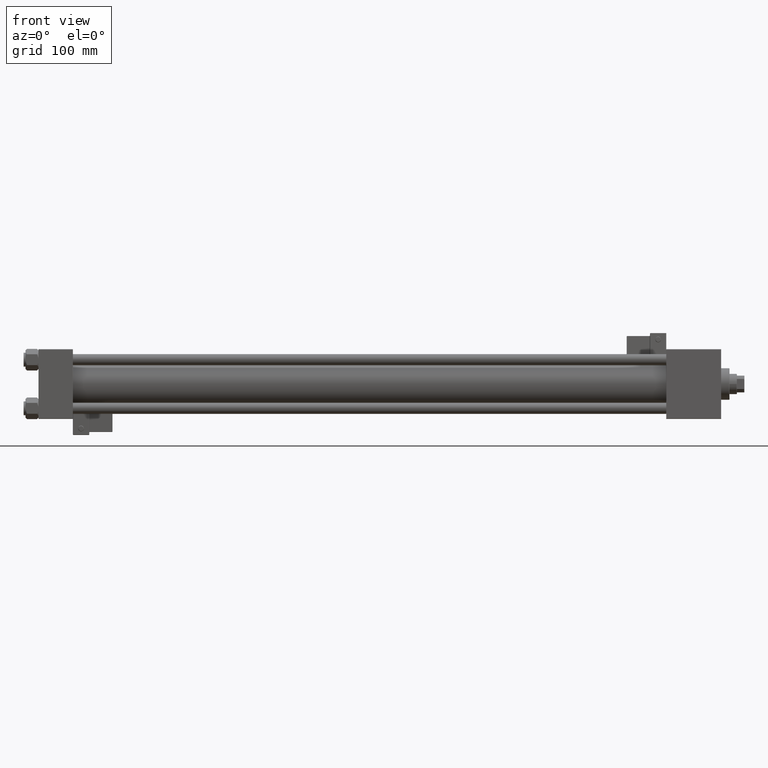
[diagram: clean part render]
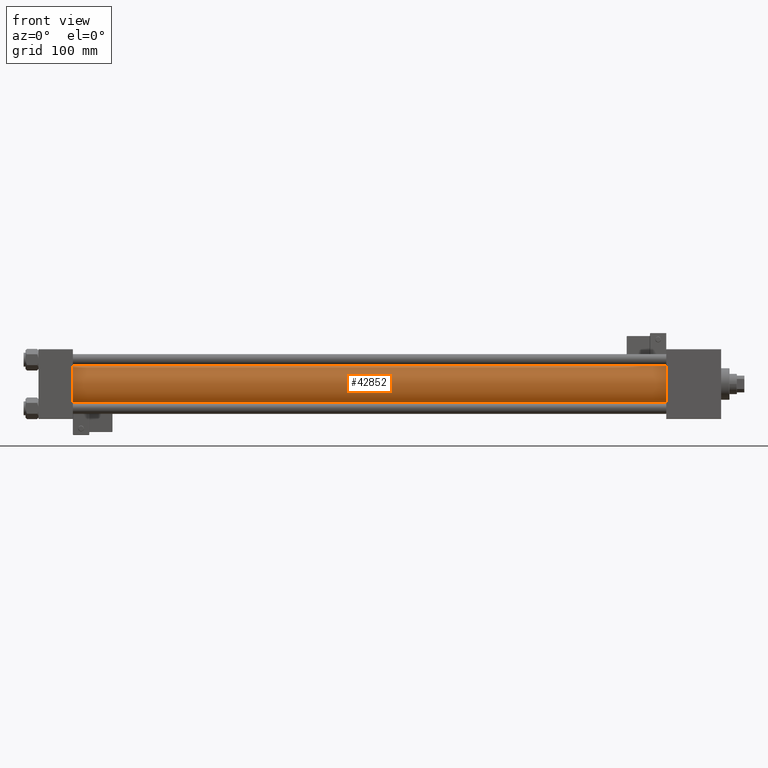
[diagram: same view with one face highlighted and labeled with its STEP entity id]
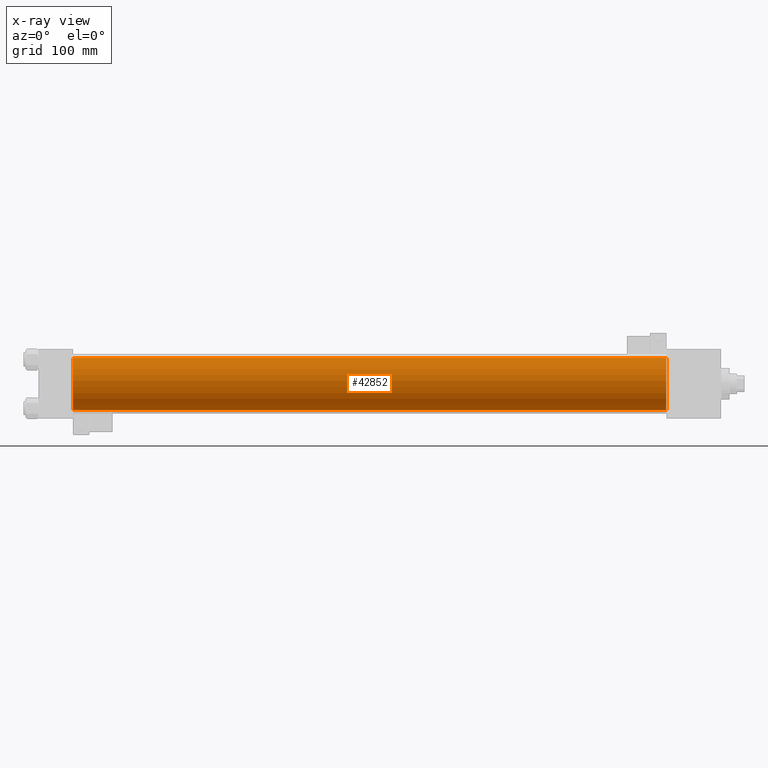
[diagram: x-ray of the same camera — body ghosted, the highlighted face saturated]
A machine part, front view. The second image highlights one B-rep face of the part: STEP entity #42852.
The next image is the same camera in x-ray: the body ghosted, the highlighted face saturated — about 0% of this face is hidden behind the body in this view.
In plain terms, the highlighted cylindrical surface (edge-blend (fillet) strip) has radius 28 mm, axis along (-1, -0, -0).
Its self-contained STEP definition (entity closure, byte-faithful):
#588 = AXIS2_PLACEMENT_3D ( 'NONE', #46192, #11085, #12850 ) ;
#1186 = CARTESIAN_POINT ( 'NONE',  ( 675.0000000000000000, -2.602085213965210642E-15, 0.000000000000000000 ) ) ;
#3538 = CARTESIAN_POINT ( 'NONE',  ( 675.0000000000000000, -2.602085213965210642E-15, 28.00000000000000000 ) ) ;
#3619 = EDGE_LOOP ( 'NONE', ( #22146, #26515, #16419, #24078 ) ) ;
#6437 = CARTESIAN_POINT ( 'NONE',  ( 37.00000000000003553, -2.602085213965210642E-15, 0.000000000000000000 ) ) ;
#8023 = VERTEX_POINT ( 'NONE', #28713 ) ;
#10034 = LINE ( 'NONE', #21213, #13147 ) ;
#10745 = EDGE_CURVE ( 'NONE', #8023, #27839, #10034, .T. ) ;
#11085 = DIRECTION ( 'NONE',  ( 1.000000000000000000, 0.000000000000000000, 0.000000000000000000 ) ) ;
#12611 = FACE_OUTER_BOUND ( 'NONE', #3619, .T. ) ;
#12850 = DIRECTION ( 'NONE',  ( 0.000000000000000000, 0.000000000000000000, -1.000000000000000000 ) ) ;
#13147 = VECTOR ( 'NONE', #33690, 1000.000000000000000 ) ;
#13670 = DIRECTION ( 'NONE',  ( -1.000000000000000000, -0.000000000000000000, -0.000000000000000000 ) ) ;
#16419 = ORIENTED_EDGE ( 'NONE', *, *, #40260, .T. ) ;
#16601 = CYLINDRICAL_SURFACE ( 'NONE', #44093, 28.00000000000000000 ) ;
#21213 = CARTESIAN_POINT ( 'NONE',  ( 675.0000000000000000, 8.269258236473784371E-16, -28.00000000000000000 ) ) ;
#22146 = ORIENTED_EDGE ( 'NONE', *, *, #10745, .F. ) ;
#22645 = DIRECTION ( 'NONE',  ( 1.000000000000000000, -0.000000000000000000, 0.000000000000000000 ) ) ;
#22692 = CARTESIAN_POINT ( 'NONE',  ( 37.00000000000003553, -2.602085213965210642E-15, 28.00000000000000000 ) ) ;
#24078 = ORIENTED_EDGE ( 'NONE', *, *, #38463, .T. ) ;
#26137 = AXIS2_PLACEMENT_3D ( 'NONE', #6437, #22645, #29580 ) ;
#26469 = VERTEX_POINT ( 'NONE', #22692 ) ;
#26515 = ORIENTED_EDGE ( 'NONE', *, *, #33738, .F. ) ;
#27046 = VECTOR ( 'NONE', #44201, 1000.000000000000000 ) ;
#27839 = VERTEX_POINT ( 'NONE', #30748 ) ;
#28713 = CARTESIAN_POINT ( 'NONE',  ( 675.0000000000000000, 8.269258236473784371E-16, -28.00000000000000000 ) ) ;
#28850 = DIRECTION ( 'NONE',  ( 0.000000000000000000, 0.000000000000000000, 1.000000000000000000 ) ) ;
#29580 = DIRECTION ( 'NONE',  ( 0.000000000000000000, 0.000000000000000000, 1.000000000000000000 ) ) ;
#30473 = LINE ( 'NONE', #3538, #27046 ) ;
#30748 = CARTESIAN_POINT ( 'NONE',  ( 37.00000000000003553, 8.269258236473784371E-16, -28.00000000000000000 ) ) ;
#33690 = DIRECTION ( 'NONE',  ( -1.000000000000000000, -0.000000000000000000, -0.000000000000000000 ) ) ;
#33738 = EDGE_CURVE ( 'NONE', #49251, #8023, #48107, .T. ) ;
#34772 = CARTESIAN_POINT ( 'NONE',  ( 675.0000000000000000, -2.602085213965210642E-15, 28.00000000000000000 ) ) ;
#38463 = EDGE_CURVE ( 'NONE', #26469, #27839, #40564, .T. ) ;
#40260 = EDGE_CURVE ( 'NONE', #49251, #26469, #30473, .T. ) ;
#40564 = CIRCLE ( 'NONE', #26137, 28.00000000000000000 ) ;
#42852 = ADVANCED_FACE ( 'NONE', ( #12611 ), #16601, .T. ) ;
#44093 = AXIS2_PLACEMENT_3D ( 'NONE', #1186, #13670, #28850 ) ;
#44201 = DIRECTION ( 'NONE',  ( -1.000000000000000000, -0.000000000000000000, -0.000000000000000000 ) ) ;
#46192 = CARTESIAN_POINT ( 'NONE',  ( 675.0000000000000000, -2.602085213965210642E-15, 0.000000000000000000 ) ) ;
#48107 = CIRCLE ( 'NONE', #588, 28.00000000000000000 ) ;
#49251 = VERTEX_POINT ( 'NONE', #34772 ) ;